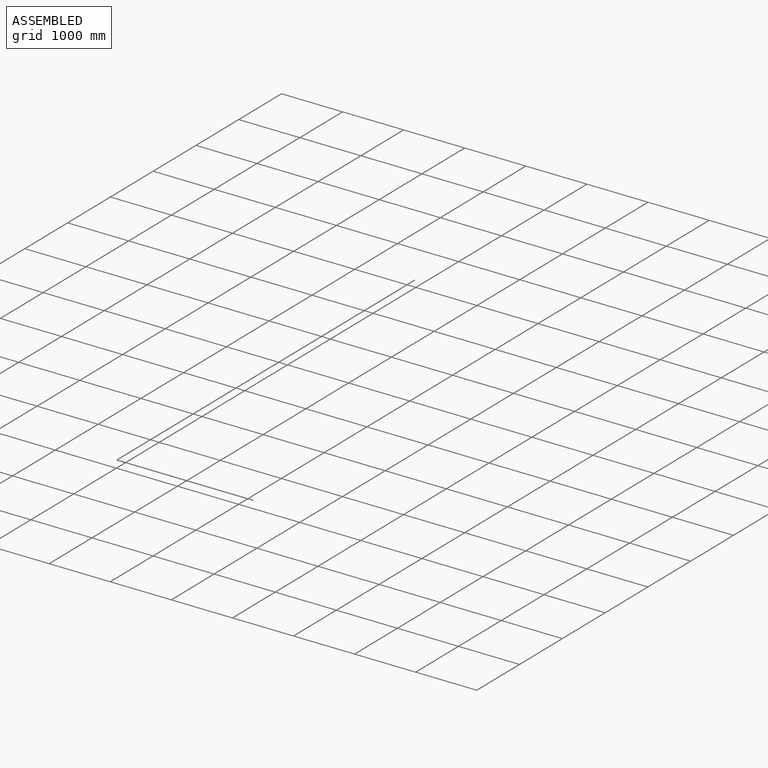
[diagram: assembled view]
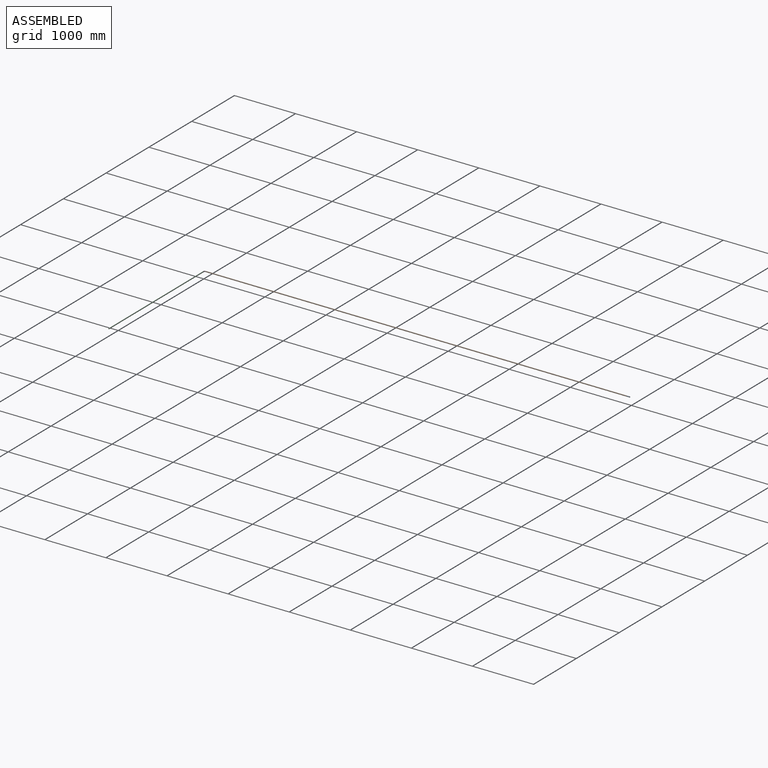
[diagram: assembled view, second angle]
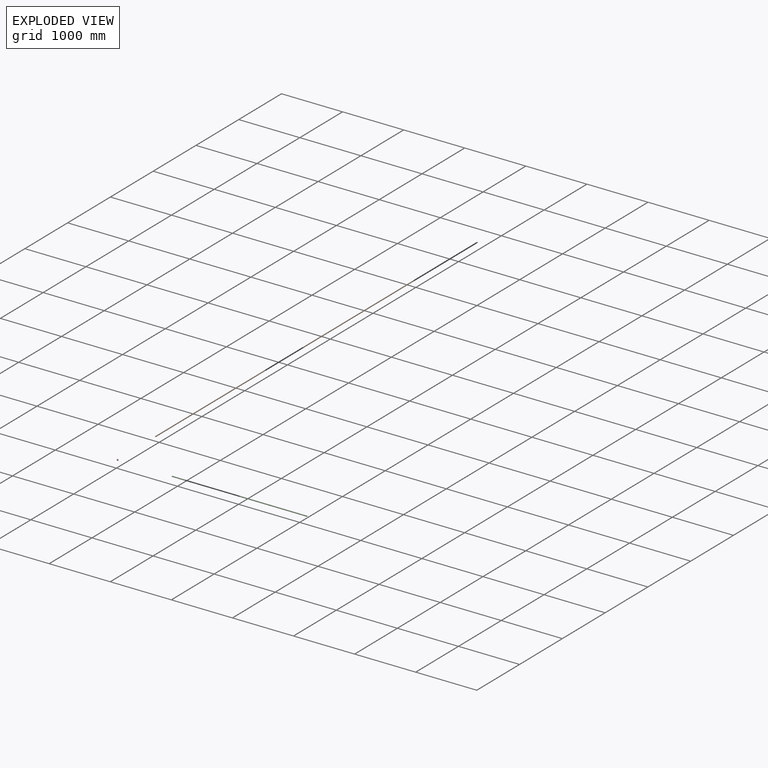
[diagram: exploded view]
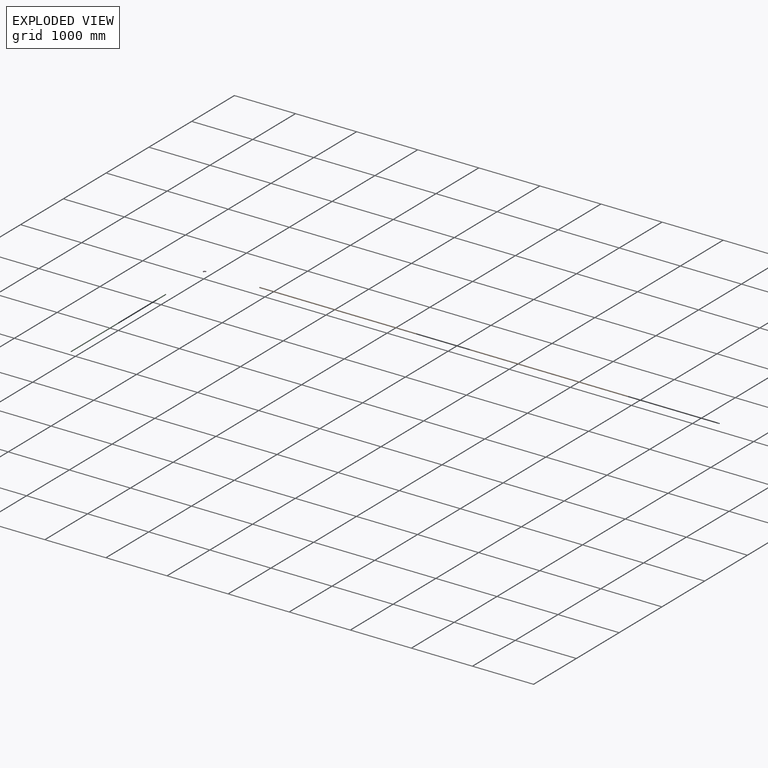
[diagram: exploded view, second angle]
ASSEMBLY  parts=4 mates=3
PART A: 3 faces, bbox 15x50x15 mm
  f0: cylinder r=7.5mm len=50mm, axis (0,1,0), area 2356.2mm2, adj f1,f2
  f1: plane 15x15mm, normal (0,-1,0), area 176.7mm2, adj f0
  f2: plane 15x15mm, normal (0,1,0), area 176.7mm2, adj f0
PART B: 3 faces, bbox 15x6890x15 mm
  f0: cylinder r=7.5mm len=6890mm, axis (0,1,0), area 324683.6mm2, adj f1,f2
  f1: plane 15x15mm, normal (0,-1,0), area 176.7mm2, adj f0
  f2: plane 15x15mm, normal (0,1,0), area 176.7mm2, adj f0
PART C: 3 faces, bbox 15x2210x15 mm
  f0: cylinder r=7.5mm len=2210mm, axis (0,1,0), area 104143.8mm2, adj f1,f2
  f1: plane 15x15mm, normal (0,-1,0), area 176.7mm2, adj f0
  f2: plane 15x15mm, normal (0,1,0), area 176.7mm2, adj f0
PART D: 5 faces, bbox 34.4x34.4x15 mm
  f0: plane 15x15mm, normal (0,-1,0), area 176.7mm2, adj f2
  f1: plane 15x15mm, normal (1,0,0), area 176.7mm2, adj f4
  f2: cylinder r=7.5mm len=15mm, axis (0,1,0), area 471.2mm2, adj f0,f3
  f3: torus R=15mm, axis (0,0,-1), area 1110.3mm2, adj f2,f4
  f4: cylinder r=7.5mm len=15mm, axis (1,0,0), area 471.2mm2, adj f1,f3
PLACE A t=(0,-25,-25)mm
PLACE B t=(0,-75,-25)mm
PLACE C rot(axis=(0,0,1),90deg) t=(25,-6990,-25)mm
PLACE D rot(axis=(0,0,1),90deg) t=(25,-6990,-25)mm
MATE fastened D.f4 <-> B.f0  axis (0,1,0) through (0,-6965,-25)mm
MATE revolute B.f0 <-> A.f0  axis (0,1,0) through (0,-75,-25)mm
MATE revolute C.f0 <-> D.f2  axis (-1,0,0) through (25,-6990,-25)mm
